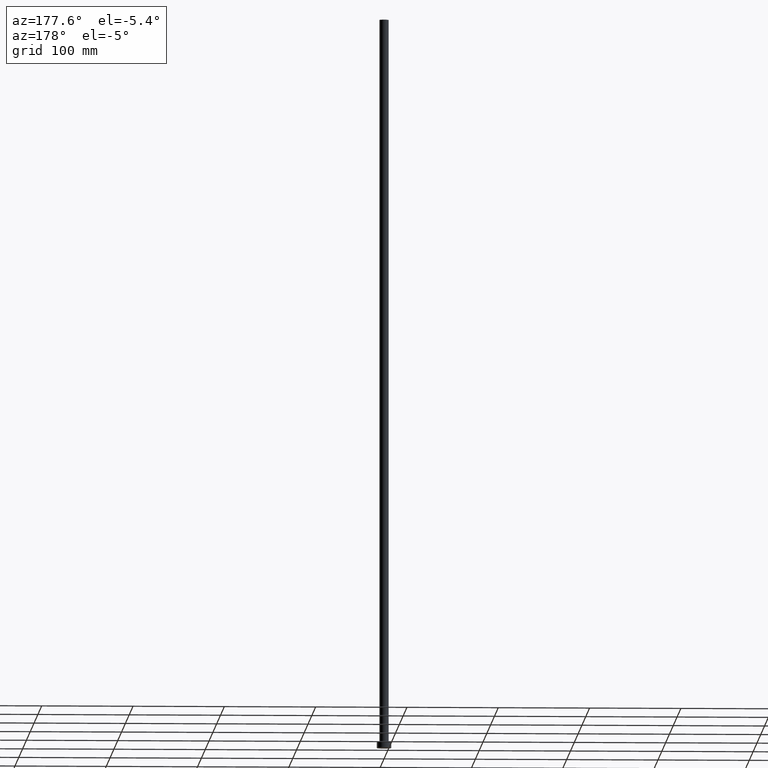
[diagram: clean part render]
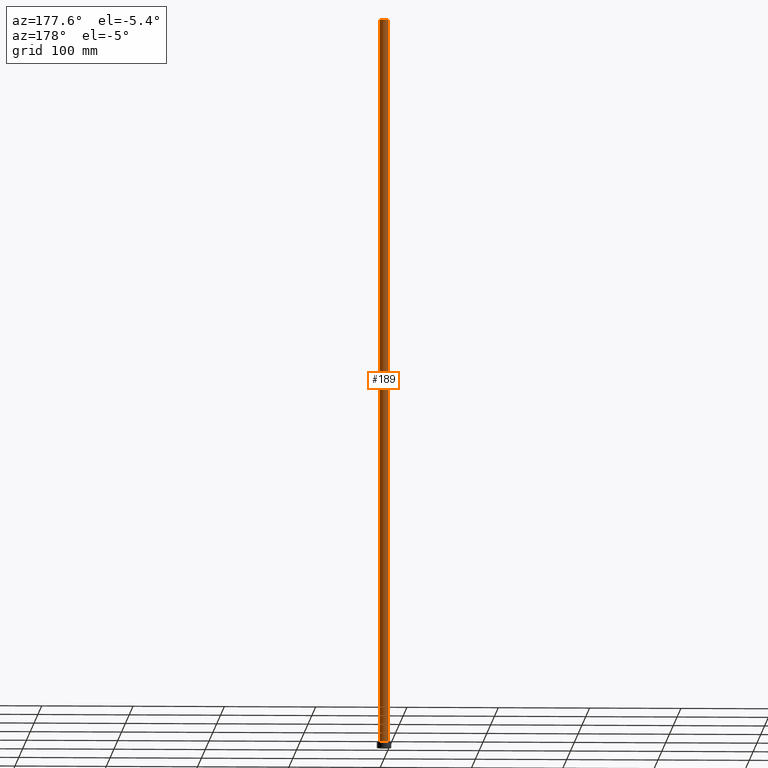
[diagram: same view with one face highlighted and labeled with its STEP entity id]
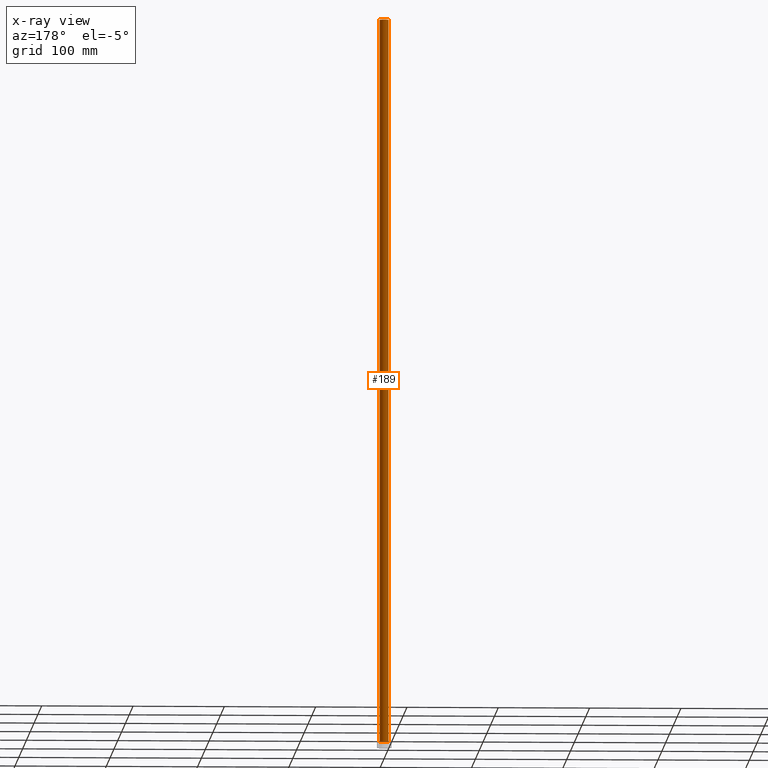
[diagram: x-ray of the same camera — body ghosted, the highlighted face saturated]
A machine part, auxiliary view. The second image highlights one B-rep face of the part: STEP entity #189.
The next image is the same camera in x-ray: the body ghosted, the highlighted face saturated — about 0% of this face is hidden behind the body in this view.
In plain terms, the highlighted cylindrical surface (edge-blend (fillet) strip) has radius 5 mm, axis along (-0, -0, -1).
Its self-contained STEP definition (entity closure, byte-faithful):
#13 = CYLINDRICAL_SURFACE ( 'NONE', #115, 5.000000000000000888 ) ;
#22 = LINE ( 'NONE', #161, #100 ) ;
#28 = DIRECTION ( 'NONE',  ( -1.000000000000000000, 0.000000000000000000, 0.000000000000000000 ) ) ;
#34 = DIRECTION ( 'NONE',  ( 0.000000000000000000, 0.000000000000000000, 1.000000000000000000 ) ) ;
#50 = CARTESIAN_POINT ( 'NONE',  ( 0.000000000000000000, 0.000000000000000000, 799.9999999999998863 ) ) ;
#51 = DIRECTION ( 'NONE',  ( 1.000000000000000000, 0.000000000000000000, 0.000000000000000000 ) ) ;
#63 = VECTOR ( 'NONE', #66, 1000.000000000000000 ) ;
#66 = DIRECTION ( 'NONE',  ( -0.000000000000000000, -0.000000000000000000, -1.000000000000000000 ) ) ;
#78 = ORIENTED_EDGE ( 'NONE', *, *, #179, .T. ) ;
#82 = VERTEX_POINT ( 'NONE', #108 ) ;
#90 = CIRCLE ( 'NONE', #121, 5.000000000000000888 ) ;
#92 = CARTESIAN_POINT ( 'NONE',  ( 0.000000000000000000, 0.000000000000000000, 799.9999999999998863 ) ) ;
#100 = VECTOR ( 'NONE', #163, 1000.000000000000000 ) ;
#108 = CARTESIAN_POINT ( 'NONE',  ( 5.000000000000000888, 6.123233995736767268E-16, 6.500000000000000000 ) ) ;
#111 = CARTESIAN_POINT ( 'NONE',  ( 5.000000000000000888, 6.123233995736767268E-16, 799.9999999999998863 ) ) ;
#112 = EDGE_CURVE ( 'NONE', #174, #82, #22, .T. ) ;
#114 = CARTESIAN_POINT ( 'NONE',  ( 0.000000000000000000, 0.000000000000000000, 6.500000000000000000 ) ) ;
#115 = AXIS2_PLACEMENT_3D ( 'NONE', #92, #167, #28 ) ;
#121 = AXIS2_PLACEMENT_3D ( 'NONE', #114, #188, #51 ) ;
#124 = ORIENTED_EDGE ( 'NONE', *, *, #240, .F. ) ;
#136 = VERTEX_POINT ( 'NONE', #242 ) ;
#151 = EDGE_LOOP ( 'NONE', ( #124, #224, #78, #208 ) ) ;
#157 = EDGE_CURVE ( 'NONE', #165, #136, #172, .T. ) ;
#161 = CARTESIAN_POINT ( 'NONE',  ( 5.000000000000000888, 6.123233995736767268E-16, 799.9999999999998863 ) ) ;
#163 = DIRECTION ( 'NONE',  ( -0.000000000000000000, -0.000000000000000000, -1.000000000000000000 ) ) ;
#165 = VERTEX_POINT ( 'NONE', #178 ) ;
#167 = DIRECTION ( 'NONE',  ( -0.000000000000000000, -0.000000000000000000, -1.000000000000000000 ) ) ;
#172 = LINE ( 'NONE', #200, #63 ) ;
#174 = VERTEX_POINT ( 'NONE', #111 ) ;
#178 = CARTESIAN_POINT ( 'NONE',  ( -5.000000000000000888, 0.000000000000000000, 799.9999999999998863 ) ) ;
#179 = EDGE_CURVE ( 'NONE', #82, #136, #90, .T. ) ;
#183 = DIRECTION ( 'NONE',  ( 1.000000000000000000, 0.000000000000000000, 0.000000000000000000 ) ) ;
#186 = FACE_OUTER_BOUND ( 'NONE', #151, .T. ) ;
#188 = DIRECTION ( 'NONE',  ( 0.000000000000000000, 0.000000000000000000, 1.000000000000000000 ) ) ;
#189 = ADVANCED_FACE ( 'NONE', ( #186 ), #13, .T. ) ;
#194 = CIRCLE ( 'NONE', #226, 5.000000000000000888 ) ;
#200 = CARTESIAN_POINT ( 'NONE',  ( -5.000000000000000888, 0.000000000000000000, 799.9999999999998863 ) ) ;
#208 = ORIENTED_EDGE ( 'NONE', *, *, #157, .F. ) ;
#224 = ORIENTED_EDGE ( 'NONE', *, *, #112, .T. ) ;
#226 = AXIS2_PLACEMENT_3D ( 'NONE', #50, #34, #183 ) ;
#240 = EDGE_CURVE ( 'NONE', #174, #165, #194, .T. ) ;
#242 = CARTESIAN_POINT ( 'NONE',  ( -5.000000000000000888, 0.000000000000000000, 6.500000000000000000 ) ) ;